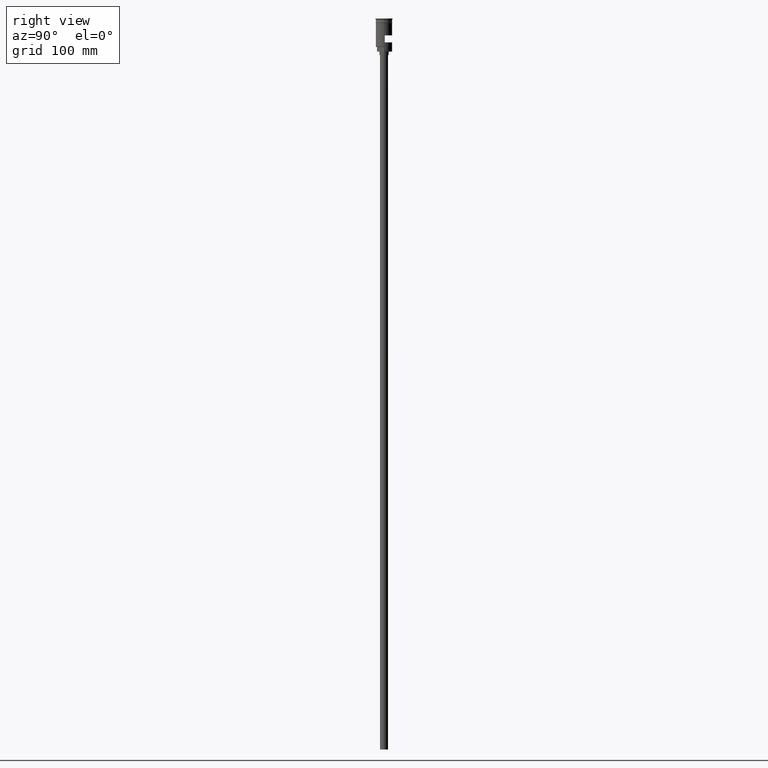
[diagram: clean part render]
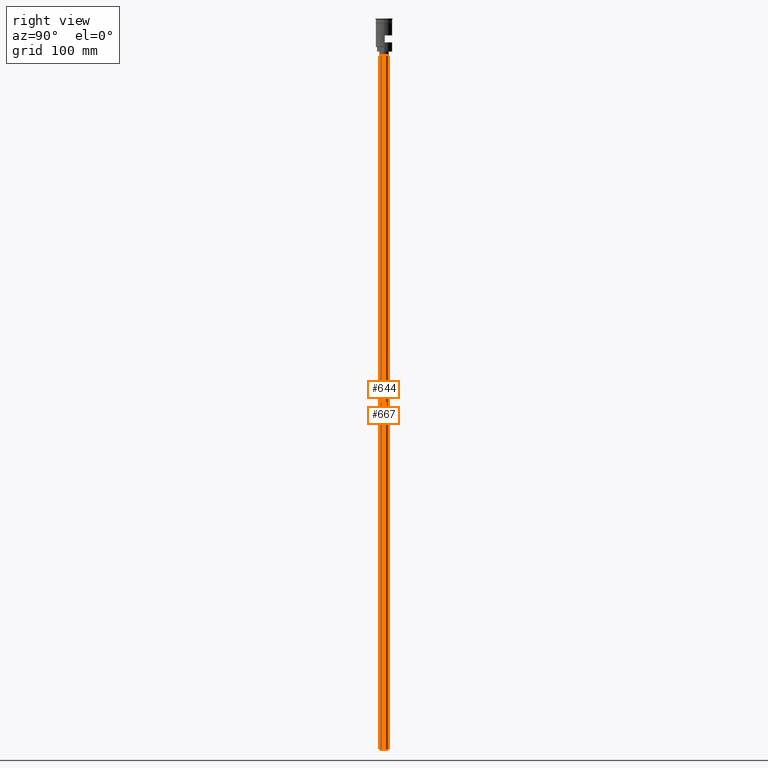
[diagram: same view with one multi-face feature highlighted, each face labeled with its STEP entity id]
A machine part, right view. The highlighted faces form ONE feature: a constant-radius fillet chain: 2 tangent blend faces with common blend radius 3.5 mm. The faces share edges in the B-rep.
Their STEP definitions:
[1] entity #644 (Cylinder):
#118 = LINE ( 'NONE', #1111, #1553 ) ;
#125 = CARTESIAN_POINT ( 'NONE',  ( 3.500000000000000444, 0.000000000000000000, -628.5000000000000000 ) ) ;
#186 = CARTESIAN_POINT ( 'NONE',  ( -3.500000000000000444, 4.286263797015737088E-16, -31.50000000000000000 ) ) ;
#200 = VERTEX_POINT ( 'NONE', #348 ) ;
#201 = DIRECTION ( 'NONE',  ( 1.000000000000000000, 0.000000000000000000, 0.000000000000000000 ) ) ;
#254 = CARTESIAN_POINT ( 'NONE',  ( -3.500000000000000444, 4.286263797015737088E-16, -628.5000000000000000 ) ) ;
#274 = DIRECTION ( 'NONE',  ( -0.000000000000000000, -0.000000000000000000, 1.000000000000000000 ) ) ;
#348 = CARTESIAN_POINT ( 'NONE',  ( 3.500000000000000444, 0.000000000000000000, -31.50000000000000000 ) ) ;
#362 = EDGE_CURVE ( 'NONE', #406, #674, #672, .T. ) ;
#363 = DIRECTION ( 'NONE',  ( 0.000000000000000000, 0.000000000000000000, -1.000000000000000000 ) ) ;
#406 = VERTEX_POINT ( 'NONE', #254 ) ;
#438 = CIRCLE ( 'NONE', #980, 3.500000000000000444 ) ;
#543 = CARTESIAN_POINT ( 'NONE',  ( -3.500000000000000444, 4.286263797015737088E-16, -628.5000000000000000 ) ) ;
#569 = FACE_OUTER_BOUND ( 'NONE', #584, .T. ) ;
#584 = EDGE_LOOP ( 'NONE', ( #849, #799, #719, #1511 ) ) ;
#644 = ADVANCED_FACE ( 'NONE', ( #569 ), #1425, .T. ) ;
#672 = LINE ( 'NONE', #543, #784 ) ;
#674 = VERTEX_POINT ( 'NONE', #186 ) ;
#719 = ORIENTED_EDGE ( 'NONE', *, *, #1234, .T. ) ;
#741 = DIRECTION ( 'NONE',  ( -0.000000000000000000, -0.000000000000000000, 1.000000000000000000 ) ) ;
#784 = VECTOR ( 'NONE', #274, 1000.000000000000000 ) ;
#799 = ORIENTED_EDGE ( 'NONE', *, *, #1410, .F. ) ;
#848 = CARTESIAN_POINT ( 'NONE',  ( 0.000000000000000000, 0.000000000000000000, -31.50000000000000000 ) ) ;
#849 = ORIENTED_EDGE ( 'NONE', *, *, #362, .F. ) ;
#868 = AXIS2_PLACEMENT_3D ( 'NONE', #1298, #1549, #201 ) ;
#980 = AXIS2_PLACEMENT_3D ( 'NONE', #1456, #363, #1223 ) ;
#1111 = CARTESIAN_POINT ( 'NONE',  ( 3.500000000000000444, 0.000000000000000000, -628.5000000000000000 ) ) ;
#1208 = DIRECTION ( 'NONE',  ( 0.000000000000000000, 0.000000000000000000, -1.000000000000000000 ) ) ;
#1223 = DIRECTION ( 'NONE',  ( -1.000000000000000000, 0.000000000000000000, 0.000000000000000000 ) ) ;
#1234 = EDGE_CURVE ( 'NONE', #1471, #200, #118, .T. ) ;
#1295 = AXIS2_PLACEMENT_3D ( 'NONE', #848, #1208, #1352 ) ;
#1298 = CARTESIAN_POINT ( 'NONE',  ( 0.000000000000000000, 0.000000000000000000, -628.5000000000000000 ) ) ;
#1352 = DIRECTION ( 'NONE',  ( -1.000000000000000000, 0.000000000000000000, 0.000000000000000000 ) ) ;
#1365 = CIRCLE ( 'NONE', #1295, 3.500000000000000444 ) ;
#1410 = EDGE_CURVE ( 'NONE', #1471, #406, #438, .T. ) ;
#1425 = CYLINDRICAL_SURFACE ( 'NONE', #868, 3.500000000000000444 ) ;
#1456 = CARTESIAN_POINT ( 'NONE',  ( 0.000000000000000000, 0.000000000000000000, -628.5000000000000000 ) ) ;
#1471 = VERTEX_POINT ( 'NONE', #125 ) ;
#1511 = ORIENTED_EDGE ( 'NONE', *, *, #1525, .T. ) ;
#1525 = EDGE_CURVE ( 'NONE', #200, #674, #1365, .T. ) ;
#1549 = DIRECTION ( 'NONE',  ( -0.000000000000000000, -0.000000000000000000, 1.000000000000000000 ) ) ;
#1553 = VECTOR ( 'NONE', #741, 1000.000000000000000 ) ;
[2] entity #667 (Cylinder):
#3 = CARTESIAN_POINT ( 'NONE',  ( 0.000000000000000000, 0.000000000000000000, -628.5000000000000000 ) ) ;
#4 = ORIENTED_EDGE ( 'NONE', *, *, #362, .T. ) ;
#110 = CIRCLE ( 'NONE', #687, 3.500000000000000444 ) ;
#118 = LINE ( 'NONE', #1111, #1553 ) ;
#125 = CARTESIAN_POINT ( 'NONE',  ( 3.500000000000000444, 0.000000000000000000, -628.5000000000000000 ) ) ;
#186 = CARTESIAN_POINT ( 'NONE',  ( -3.500000000000000444, 4.286263797015737088E-16, -31.50000000000000000 ) ) ;
#200 = VERTEX_POINT ( 'NONE', #348 ) ;
#254 = CARTESIAN_POINT ( 'NONE',  ( -3.500000000000000444, 4.286263797015737088E-16, -628.5000000000000000 ) ) ;
#274 = DIRECTION ( 'NONE',  ( -0.000000000000000000, -0.000000000000000000, 1.000000000000000000 ) ) ;
#295 = ORIENTED_EDGE ( 'NONE', *, *, #1234, .F. ) ;
#348 = CARTESIAN_POINT ( 'NONE',  ( 3.500000000000000444, 0.000000000000000000, -31.50000000000000000 ) ) ;
#362 = EDGE_CURVE ( 'NONE', #406, #674, #672, .T. ) ;
#406 = VERTEX_POINT ( 'NONE', #254 ) ;
#436 = CIRCLE ( 'NONE', #514, 3.500000000000000444 ) ;
#514 = AXIS2_PLACEMENT_3D ( 'NONE', #3, #862, #742 ) ;
#534 = EDGE_LOOP ( 'NONE', ( #1246, #4, #1584, #295 ) ) ;
#543 = CARTESIAN_POINT ( 'NONE',  ( -3.500000000000000444, 4.286263797015737088E-16, -628.5000000000000000 ) ) ;
#667 = ADVANCED_FACE ( 'NONE', ( #792 ), #1402, .T. ) ;
#672 = LINE ( 'NONE', #543, #784 ) ;
#674 = VERTEX_POINT ( 'NONE', #186 ) ;
#687 = AXIS2_PLACEMENT_3D ( 'NONE', #1379, #749, #779 ) ;
#741 = DIRECTION ( 'NONE',  ( -0.000000000000000000, -0.000000000000000000, 1.000000000000000000 ) ) ;
#742 = DIRECTION ( 'NONE',  ( -1.000000000000000000, 0.000000000000000000, 0.000000000000000000 ) ) ;
#749 = DIRECTION ( 'NONE',  ( 0.000000000000000000, 0.000000000000000000, -1.000000000000000000 ) ) ;
#779 = DIRECTION ( 'NONE',  ( -1.000000000000000000, 0.000000000000000000, 0.000000000000000000 ) ) ;
#784 = VECTOR ( 'NONE', #274, 1000.000000000000000 ) ;
#792 = FACE_OUTER_BOUND ( 'NONE', #534, .T. ) ;
#862 = DIRECTION ( 'NONE',  ( 0.000000000000000000, 0.000000000000000000, -1.000000000000000000 ) ) ;
#927 = DIRECTION ( 'NONE',  ( -0.000000000000000000, -0.000000000000000000, 1.000000000000000000 ) ) ;
#1030 = EDGE_CURVE ( 'NONE', #674, #200, #110, .T. ) ;
#1063 = DIRECTION ( 'NONE',  ( 1.000000000000000000, 0.000000000000000000, 0.000000000000000000 ) ) ;
#1111 = CARTESIAN_POINT ( 'NONE',  ( 3.500000000000000444, 0.000000000000000000, -628.5000000000000000 ) ) ;
#1115 = EDGE_CURVE ( 'NONE', #406, #1471, #436, .T. ) ;
#1160 = CARTESIAN_POINT ( 'NONE',  ( 0.000000000000000000, 0.000000000000000000, -628.5000000000000000 ) ) ;
#1234 = EDGE_CURVE ( 'NONE', #1471, #200, #118, .T. ) ;
#1246 = ORIENTED_EDGE ( 'NONE', *, *, #1115, .F. ) ;
#1379 = CARTESIAN_POINT ( 'NONE',  ( 0.000000000000000000, 0.000000000000000000, -31.50000000000000000 ) ) ;
#1402 = CYLINDRICAL_SURFACE ( 'NONE', #1420, 3.500000000000000444 ) ;
#1420 = AXIS2_PLACEMENT_3D ( 'NONE', #1160, #927, #1063 ) ;
#1471 = VERTEX_POINT ( 'NONE', #125 ) ;
#1553 = VECTOR ( 'NONE', #741, 1000.000000000000000 ) ;
#1584 = ORIENTED_EDGE ( 'NONE', *, *, #1030, .T. ) ;